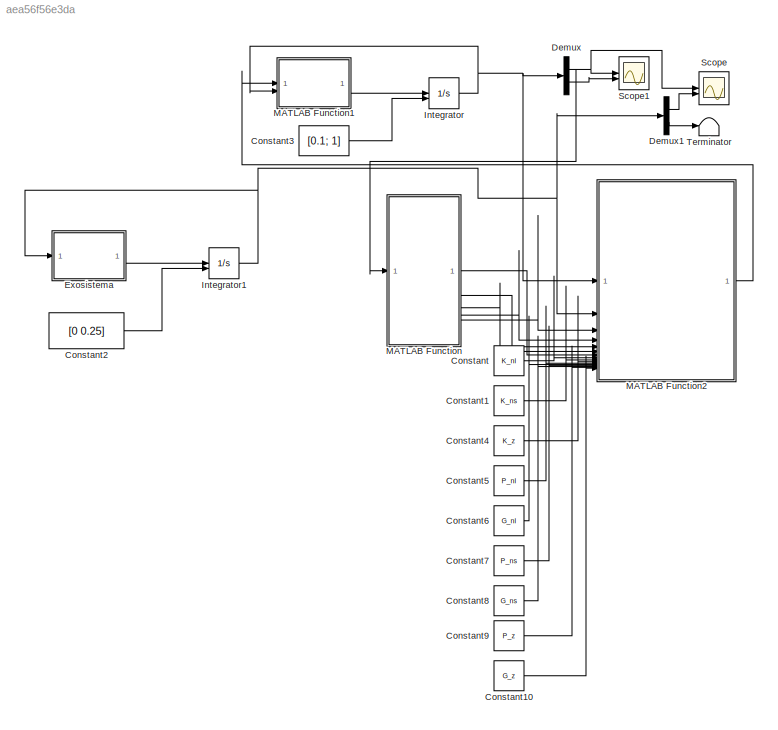
MODEL slx_aea56f56e3da
KIND model
CONFIG AbsTol = auto
CONFIG EnableMultiTasking = off
CONFIG FixedStep = 0.001
CONFIG MaxStep = auto
CONFIG MinStep = auto
CONFIG RelTol = 1e-3
CONFIG SampleTimeConstraint = Unconstrained
CONFIG SolverName = FixedStepAuto
CONFIG StartTime = 0.0
CONFIG StopTime = 10.0
BLOCK [Constant] Constant
  Value = K_nl
BLOCK [Constant] Constant1
  Value = K_ns
BLOCK [Constant] Constant10
  Value = G_z
BLOCK [Constant] Constant2
  Value = [0 0.25]
BLOCK [Constant] Constant3
  Value = [0.1; 1]
BLOCK [Constant] Constant4
  Value = K_z
BLOCK [Constant] Constant5
  Value = P_nl
BLOCK [Constant] Constant6
  Value = G_nl
BLOCK [Constant] Constant7
  Value = P_ns
BLOCK [Constant] Constant8
  Value = G_ns
BLOCK [Constant] Constant9
  Value = P_z
BLOCK [Demux] Demux
  Outputs = 2
BLOCK [Demux] Demux1
  Outputs = 2
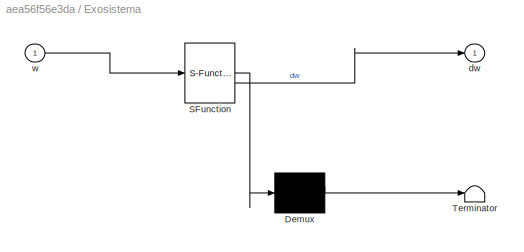
BLOCK [SubSystem] Exosistema
  ErrorFcn = Stateflow.Translate.translate
  PermitHierarchicalResolution = ExplicitOnly
  SFBlockType = MATLAB Function
  TreatAsAtomicUnit = on
BLOCK [Demux] Exosistema/ Demux 
  Outputs = 1
BLOCK [S-Function] Exosistema/ SFunction 
  EnableBusSupport = on
  FunctionName = sf_sfun
  PortCounts = [1 2]
  SFcnIsStateOwnerBlock = off
  SFunctionDeploymentMode = off
  Tag = Stateflow S-Function 4
BLOCK [Terminator] Exosistema/ Terminator 
BLOCK [Outport] Exosistema/dw
BLOCK [Inport] Exosistema/w
BLOCK [Integrator] Integrator
  InitialConditionSource = external
BLOCK [Integrator] Integrator1
  InitialConditionSource = external
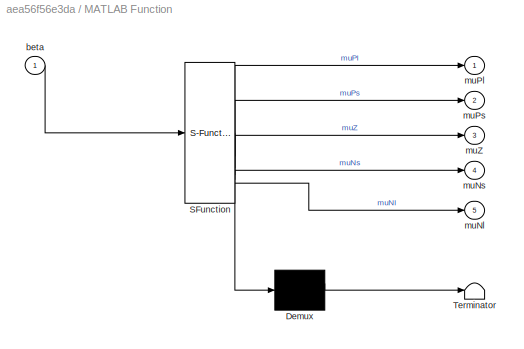
BLOCK [SubSystem] MATLAB Function
  ErrorFcn = Stateflow.Translate.translate
  PermitHierarchicalResolution = ExplicitOnly
  SFBlockType = MATLAB Function
  TreatAsAtomicUnit = on
BLOCK [Demux] MATLAB Function/ Demux 
  Outputs = 1
BLOCK [S-Function] MATLAB Function/ SFunction 
  EnableBusSupport = on
  FunctionName = sf_sfun
  PortCounts = [1 6]
  SFcnIsStateOwnerBlock = off
  SFunctionDeploymentMode = off
  Tag = Stateflow S-Function 2
BLOCK [Terminator] MATLAB Function/ Terminator 
BLOCK [Inport] MATLAB Function/beta
BLOCK [Outport] MATLAB Function/muNl
  Port = 5
BLOCK [Outport] MATLAB Function/muNs
  Port = 4
BLOCK [Outport] MATLAB Function/muPl
BLOCK [Outport] MATLAB Function/muPs
  Port = 2
BLOCK [Outport] MATLAB Function/muZ
  Port = 3
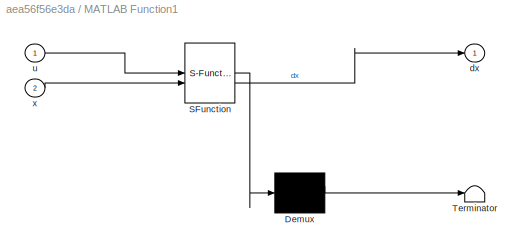
BLOCK [SubSystem] MATLAB Function1
  ErrorFcn = Stateflow.Translate.translate
  PermitHierarchicalResolution = ExplicitOnly
  SFBlockType = MATLAB Function
  TreatAsAtomicUnit = on
BLOCK [Demux] MATLAB Function1/ Demux 
  Outputs = 1
BLOCK [S-Function] MATLAB Function1/ SFunction 
  EnableBusSupport = on
  FunctionName = sf_sfun
  PortCounts = [2 2]
  SFcnIsStateOwnerBlock = off
  SFunctionDeploymentMode = off
  Tag = Stateflow S-Function 1
BLOCK [Terminator] MATLAB Function1/ Terminator 
BLOCK [Outport] MATLAB Function1/dx
BLOCK [Inport] MATLAB Function1/u
BLOCK [Inport] MATLAB Function1/x
  Port = 2
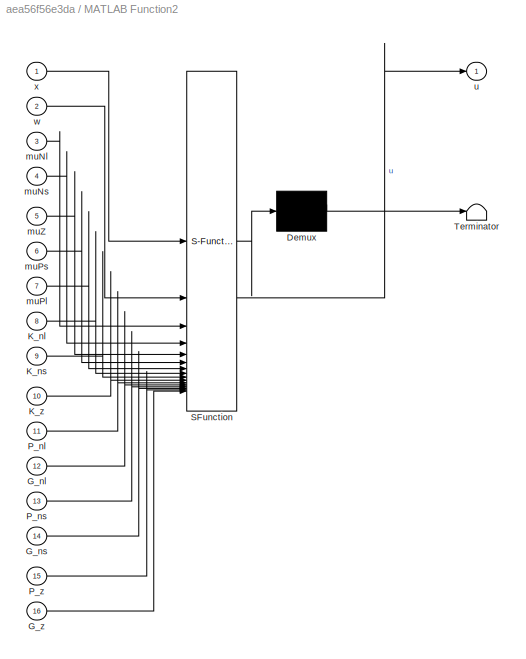
BLOCK [SubSystem] MATLAB Function2
  ErrorFcn = Stateflow.Translate.translate
  PermitHierarchicalResolution = ExplicitOnly
  SFBlockType = MATLAB Function
  TreatAsAtomicUnit = on
BLOCK [Demux] MATLAB Function2/ Demux 
  Outputs = 1
BLOCK [S-Function] MATLAB Function2/ SFunction 
  EnableBusSupport = on
  FunctionName = sf_sfun
  PortCounts = [16 2]
  SFcnIsStateOwnerBlock = off
  SFunctionDeploymentMode = off
  Tag = Stateflow S-Function 3
BLOCK [Terminator] MATLAB Function2/ Terminator 
BLOCK [Inport] MATLAB Function2/G_nl
  Port = 12
BLOCK [Inport] MATLAB Function2/G_ns
  Port = 14
BLOCK [Inport] MATLAB Function2/G_z
  Port = 16
BLOCK [Inport] MATLAB Function2/K_nl
  Port = 8
BLOCK [Inport] MATLAB Function2/K_ns
  Port = 9
BLOCK [Inport] MATLAB Function2/K_z
  Port = 10
BLOCK [Inport] MATLAB Function2/P_nl
  Port = 11
BLOCK [Inport] MATLAB Function2/P_ns
  Port = 13
BLOCK [Inport] MATLAB Function2/P_z
  Port = 15
BLOCK [Inport] MATLAB Function2/muNl
  Port = 3
BLOCK [Inport] MATLAB Function2/muNs
  Port = 4
BLOCK [Inport] MATLAB Function2/muPl
  Port = 7
BLOCK [Inport] MATLAB Function2/muPs
  Port = 6
BLOCK [Inport] MATLAB Function2/muZ
  Port = 5
BLOCK [Outport] MATLAB Function2/u
BLOCK [Inport] MATLAB Function2/w
  Port = 2
BLOCK [Inport] MATLAB Function2/x
BLOCK [Scope] Scope
  Floating = off
  NumInputPorts = 2
  ScopeSpecificationString = Simulink.scopes.TimeScopeBlockCfg('CurrentConfiguration', extmgr.ConfigurationSet(extmgr.Configuration('Core','General UI',true),extmgr.Configuration('Core','Source UI',true),extmgr.Configuration('Sources','WiredSimulink',true),extmgr.Configuration('Visuals','Time Domain',true,'SerializedDisplays',{struct('MinYLimReal','-0.32105','MaxYLimReal','0.3211','YLabelReal','','MinYLimMag','0.00000','MaxYL...<+1423ch>
BLOCK [Scope] Scope1
  Floating = off
  NumInputPorts = 2
  ScopeSpecificationString = Simulink.scopes.TimeScopeBlockCfg('CurrentConfiguration', extmgr.ConfigurationSet(extmgr.Configuration('Core','General UI',true),extmgr.Configuration('Core','Source UI',true),extmgr.Configuration('Sources','WiredSimulink',true,'DataLoggingVariableName','ScopeData1'),extmgr.Configuration('Visuals','Time Domain',true,'SerializedDisplays',{struct('MinYLimReal','-3.21047','MaxYLimReal','3.21047','YLab...<+1465ch>
BLOCK [Terminator] Terminator
LINE Constant10:1 -> MATLAB Function2:16
LINE Constant1:1 -> MATLAB Function2:9
LINE Constant2:1 -> Integrator1:2
LINE Constant3:1 -> Integrator:2
LINE Constant4:1 -> MATLAB Function2:10
LINE Constant5:1 -> MATLAB Function2:11
LINE Constant6:1 -> MATLAB Function2:12
LINE Constant7:1 -> MATLAB Function2:13
LINE Constant8:1 -> MATLAB Function2:14
LINE Constant9:1 -> MATLAB Function2:15
LINE Constant:1 -> MATLAB Function2:8
LINE Demux1:1 -> Scope:2
LINE Demux1:2 -> Terminator:1
NET Demux:1 -> MATLAB Function:1, Scope1:1, Scope:1
LINE Demux:2 -> Scope1:2
LINE Exosistema:1 -> Integrator1:1
NET Integrator1:1 -> Demux1:1, Exosistema:1, MATLAB Function2:2
NET Integrator:1 -> Demux:1, MATLAB Function1:2, MATLAB Function2:1
LINE MATLAB Function1:1 -> Integrator:1
LINE MATLAB Function2:1 -> MATLAB Function1:1
LINE MATLAB Function:1 -> MATLAB Function2:7
LINE MATLAB Function:2 -> MATLAB Function2:6
LINE MATLAB Function:3 -> MATLAB Function2:5
LINE MATLAB Function:4 -> MATLAB Function2:4
LINE MATLAB Function:5 -> MATLAB Function2:3
note: NET lines group one-source signal fan-out (src -> all destinations, sorted); 1:1 wires keep LINE
CHART MATLAB Function1 states=1 transitions=1
  STATE_LABEL 'eML_blk_kernel()'
  STATE_LABEL 'SCRIPT:\nfunction dx  = fcn(u,x)\n\nl=1; m=1; g=9.81; b=0.5; I=m*l^2;\nx1=x(1);\nx2=x(2);\ndx1=x2;\ndx2=g/l*sin(x1)-(b*l/I)*x2+u/I;\ndx = [dx1;dx2];\n\n'
CHART MATLAB Function states=1 transitions=1
  STATE_LABEL 'eML_blk_kernel()'
  STATE_LABEL 'SCRIPT:\nfunction [muPl, muPs, muZ, muNs, muNl] = fcn(beta)\n\n% Para μ Positivo Large\nif beta <= 7.5\n    muPl = 0;\nelseif beta > 7.5 && beta <= 15\n    muPl = (beta - 7.5)/7.5;\nelse\n    muPl = 1;\nend\n\n% Para μ Positivo Small\nif beta <= 0\n    muPs = 0;\nelseif beta > 0 && beta <= 7.5\n    muPs = beta/7.5;\nelseif beta > 7.5 && beta <= 15\n    muPs = (15 - beta)/7.5;\nelse\n    muPs = 0;\nend\n%  Para μ Zero\ni...<+511ch>'
CHART MATLAB Function2 states=1 transitions=1
  STATE_LABEL 'eML_blk_kernel()'
  STATE_LABEL 'SCRIPT:\nfunction u = fcn(x, w, muNl, muNs, muZ, muPs, muPl, K_nl, K_ns, K_z, P_nl,G_nl,P_ns,G_ns,P_z,G_z)\n\n%% 15 y 15\nP_nl= [P_nl(1,1) P_nl(1,2);P_nl(2,1) P_nl(2,2)];\nG_nl=[G_nl(1) G_nl(2)];\nK_nl=[K_nl(1) K_nl(2)];\nu_nl= -K_nl*x + (G_nl - K_nl*P_nl)*w;\nu_pl=u_nl;\n\n%% -7.5 y 7.5\nP_ns= [P_ns(1,1) P_ns(1,2);P_ns(2,1) P_ns(2,2)];\nG_ns=[G_ns(1) G_ns(2)];\nK_ns=[K_ns(1) K_ns(2)];\nu_ns= -K_ns*x + (G_ns - ...<+260ch>'
CHART Exosistema states=1 transitions=1
  STATE_LABEL 'eML_blk_kernel()'
  STATE_LABEL 'SCRIPT:\nfunction dw = fcn(w)\n\ndw=[0 10; -10 0]*w;\n'
CHART  states=0 transitions=0
CHART  states=0 transitions=0
CHART  states=0 transitions=0
CHART  states=0 transitions=0
